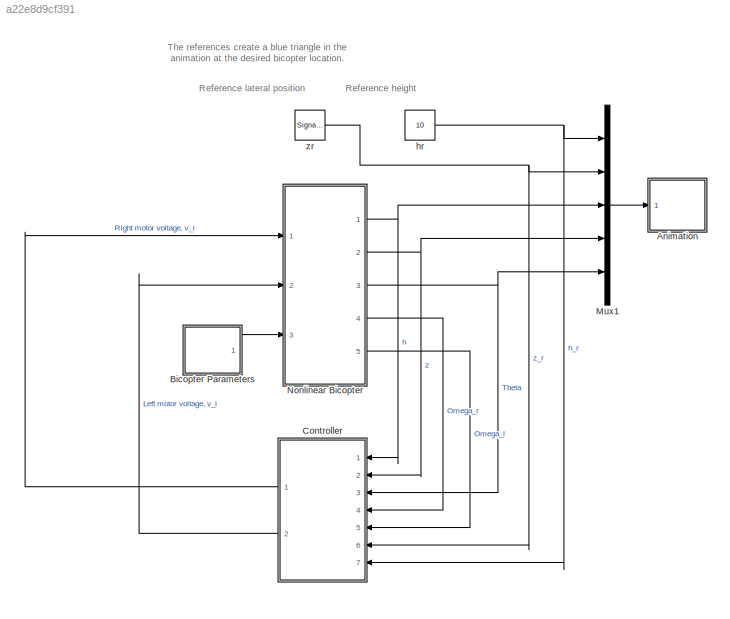
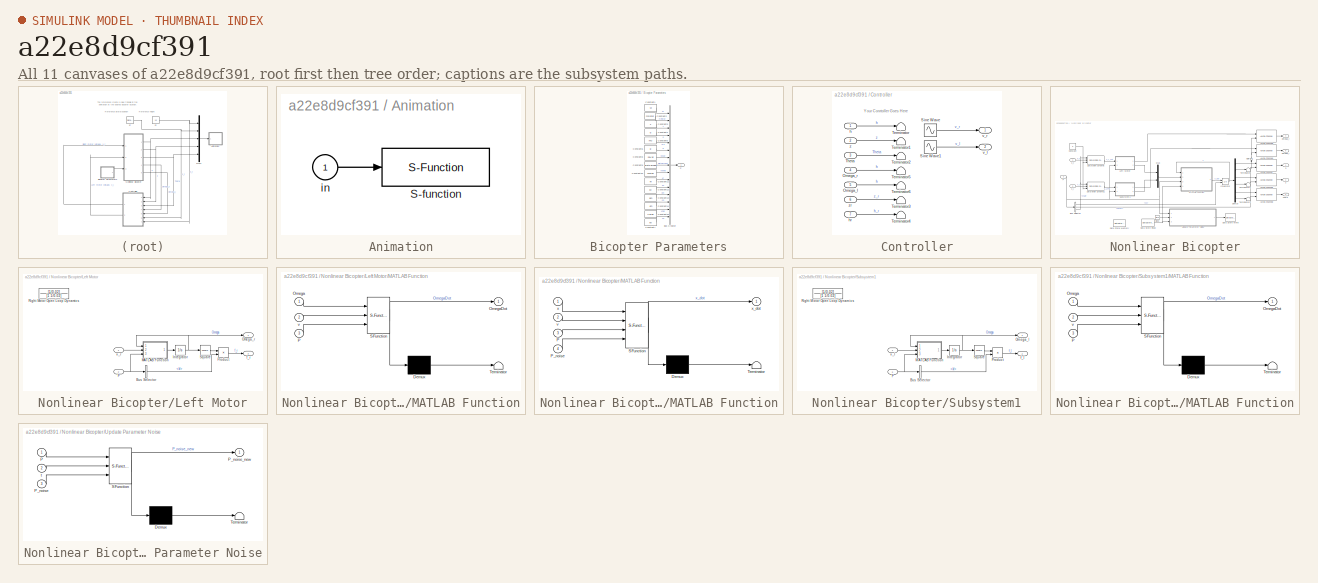
[diagram: thumbnail index - all 11 canvases of the model, root first then tree order]
MODEL slx_a22e8d9cf391
KIND model
CONFIG AbsTol = auto
CONFIG EnableMultiTasking = off
CONFIG FixedStep = 0.001
CONFIG MaxStep = auto
CONFIG MinStep = auto
CONFIG PreLoadFcn = clear P Pstruct\nPStruct=Simulink.Bus\nP(1,1)=Simulink.BusElement\nP(2,1)=Simulink.BusElement\nP(3,1)=Simulink.BusElement\nP(4,1)=Simulink.BusElement\nP(5,1)=Simulink.BusElement\nP(6,1)=Simulink.BusElement\nP(7,1)=Simulink.BusElement\nP(8,1)=Simulink.BusElement\nP(9,1)=Simulink.BusElement\nP(10,1)=Simulink.BusElement\nP(11,1)=Simulink.BusElement\nP(12,1)=Simulink.BusElement\nP(13,1)=Simulink.BusElement\nP(14,1)=...<+372ch>
CONFIG RelTol = 1e-3
CONFIG SampleTimeConstraint = Unconstrained
CONFIG Solver = ode1
CONFIG SolverName = ode1
CONFIG StartTime = 0.0
CONFIG StopTime = 100
BLOCK [SubSystem] Animation
  Ports = [1]
  RequestExecContextInheritance = off
BLOCK [S-Function] Animation/S-function
  DeleteFcn = pendan([],[],[],'DeleteBlock');
  EnableBusSupport = off
  FunctionName = planarBicopterAnimation
  Ports = [1]
  SFcnIsStateOwnerBlock = off
  SFunctionDeploymentMode = off
BLOCK [Inport] Animation/in
  IconDisplay = Port number
BLOCK [SubSystem] Bicopter Parameters
  Ports = [0, 1]
  RequestExecContextInheritance = off
BLOCK [BusCreator] Bicopter Parameters/Bus Creator
  DisplayOption = bar
  InheritFromInputs = on
  Inputs = 15
  OutDataTypeStr = Bus: PStruct
  Ports = [15, 1]
BLOCK [Constant] Bicopter Parameters/Constant1
  Value = M
BLOCK [Constant] Bicopter Parameters/Constant10
  Value = vWind
  VectorParams1D = off
BLOCK [Constant] Bicopter Parameters/Constant11
  Value = kf
  VectorParams1D = off
BLOCK [Constant] Bicopter Parameters/Constant12
  Value = kv
  VectorParams1D = off
BLOCK [Constant] Bicopter Parameters/Constant13
  Value = bm
  VectorParams1D = off
BLOCK [Constant] Bicopter Parameters/Constant14
  Value = Jm
  VectorParams1D = off
BLOCK [Constant] Bicopter Parameters/Constant15
  Value = Value
  VectorParams1D = off
BLOCK [Constant] Bicopter Parameters/Constant2
  Value = mRotor
BLOCK [Constant] Bicopter Parameters/Constant3
  Value = J
BLOCK [Constant] Bicopter Parameters/Constant4
  Value = d
BLOCK [Constant] Bicopter Parameters/Constant5
  Value = mu
BLOCK [Constant] Bicopter Parameters/Constant6
  Value = g
BLOCK [Constant] Bicopter Parameters/Constant7
  Value = x0
  VectorParams1D = off
BLOCK [Constant] Bicopter Parameters/Constant8
  Value = noVar
  VectorParams1D = off
BLOCK [Constant] Bicopter Parameters/Constant9
  Value = distPercent
  VectorParams1D = off
BLOCK [Outport] Bicopter Parameters/P
  IconDisplay = Port number
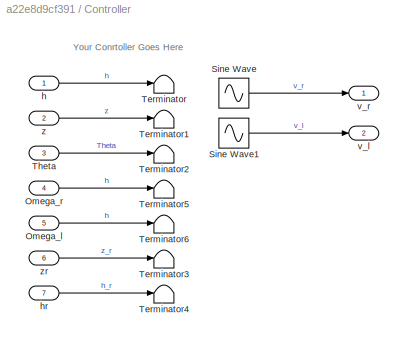
BLOCK [SubSystem] Controller
  Ports = [7, 2]
  RequestExecContextInheritance = off
BLOCK [Inport] Controller/Omega_l
  IconDisplay = Port number
  Port = 5
BLOCK [Inport] Controller/Omega_r
  IconDisplay = Port number
  Port = 4
BLOCK [Sin] Controller/Sine Wave
  Amplitude = 0.002
  Bias = 8.3
  Ports = [0, 1]
  SampleTime = 0
BLOCK [Sin] Controller/Sine Wave1
  Amplitude = 0.002
  Bias = 8.3
  Phase = 0.1
  Ports = [0, 1]
  SampleTime = 0
BLOCK [Terminator] Controller/Terminator
BLOCK [Terminator] Controller/Terminator1
BLOCK [Terminator] Controller/Terminator2
BLOCK [Terminator] Controller/Terminator3
BLOCK [Terminator] Controller/Terminator4
BLOCK [Terminator] Controller/Terminator5
BLOCK [Terminator] Controller/Terminator6
BLOCK [Inport] Controller/Theta
  IconDisplay = Port number
  Port = 3
BLOCK [Inport] Controller/h
  IconDisplay = Port number
BLOCK [Inport] Controller/hr
  IconDisplay = Port number
  Port = 7
BLOCK [Outport] Controller/v_l
  IconDisplay = Port number
  Port = 2
BLOCK [Outport] Controller/v_r
  IconDisplay = Port number
BLOCK [Inport] Controller/z
  IconDisplay = Port number
  Port = 2
BLOCK [Inport] Controller/zr
  IconDisplay = Port number
  Port = 6
BLOCK [Mux] Mux1
  DisplayOption = bar
  Inputs = 5
  Ports = [5, 1]
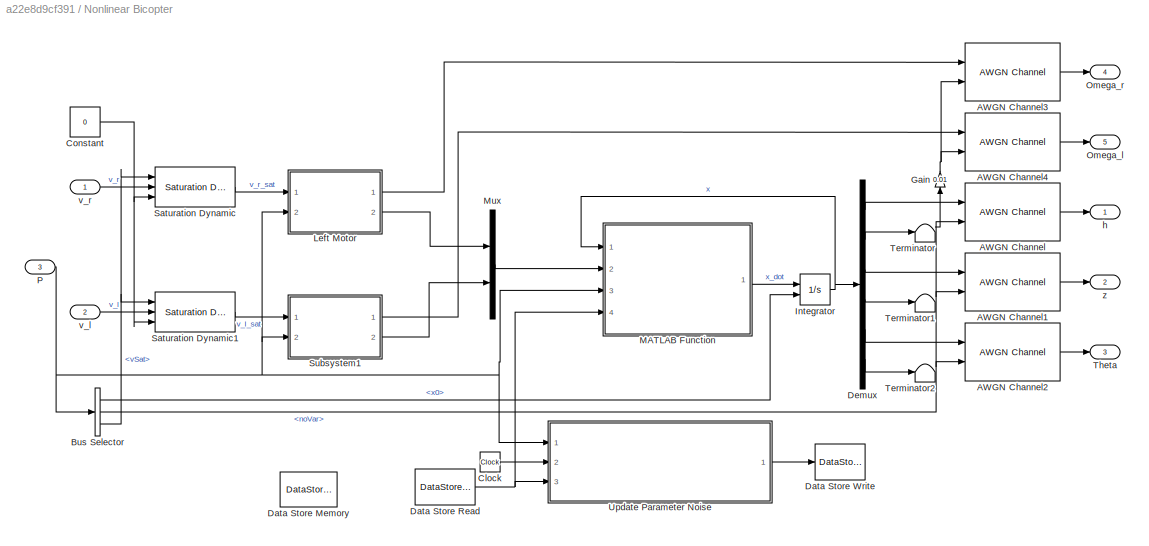
BLOCK [SubSystem] Nonlinear Bicopter
  Ports = [3, 5]
  RequestExecContextInheritance = off
BLOCK [Reference] Nonlinear Bicopter/AWGN Channel  REF=commchan3/AWGN
Channel
  Ports = [2, 1]
  SourceBlock = commchan3/AWGN\nChannel
  SourceProductBaseCode = CM
  SourceProductName = Communications Toolbox
  SourceType = AWGN Channel
  UserDataPersistent = on
BLOCK [Reference] Nonlinear Bicopter/AWGN Channel1  REF=commchan3/AWGN
Channel
  Ports = [2, 1]
  SourceBlock = commchan3/AWGN\nChannel
  SourceProductBaseCode = CM
  SourceProductName = Communications Toolbox
  SourceType = AWGN Channel
  UserDataPersistent = on
BLOCK [Reference] Nonlinear Bicopter/AWGN Channel2  REF=commchan3/AWGN
Channel
  Ports = [2, 1]
  SourceBlock = commchan3/AWGN\nChannel
  SourceProductBaseCode = CM
  SourceProductName = Communications Toolbox
  SourceType = AWGN Channel
  UserDataPersistent = on
BLOCK [Reference] Nonlinear Bicopter/AWGN Channel3  REF=commchan3/AWGN
Channel
  Ports = [2, 1]
  SourceBlock = commchan3/AWGN\nChannel
  SourceProductBaseCode = CM
  SourceProductName = Communications Toolbox
  SourceType = AWGN Channel
  UserDataPersistent = on
BLOCK [Reference] Nonlinear Bicopter/AWGN Channel4  REF=commchan3/AWGN
Channel
  Ports = [2, 1]
  SourceBlock = commchan3/AWGN\nChannel
  SourceProductBaseCode = CM
  SourceProductName = Communications Toolbox
  SourceType = AWGN Channel
  UserDataPersistent = on
BLOCK [BusSelector] Nonlinear Bicopter/Bus Selector
  OutputAsBus = off
  OutputSignals = x0,noVar,vSat
  Ports = [1, 3]
BLOCK [Clock] Nonlinear Bicopter/Clock
BLOCK [Constant] Nonlinear Bicopter/Constant
  Value = 0
BLOCK [DataStoreMemory] Nonlinear Bicopter/Data Store Memory
  DataStoreName = P_noise
  InitialValue = [0;0;0;0;0;0;0;0]
  OutDataTypeStr = double
  ReadBeforeWriteMsg = warning
  ShowAdditionalParam = off
  SignalType = real
  WriteAfterReadMsg = warning
  WriteAfterWriteMsg = warning
BLOCK [DataStoreRead] Nonlinear Bicopter/Data Store Read
  DataStoreName = P_noise
  Ports = [0, 1]
BLOCK [DataStoreWrite] Nonlinear Bicopter/Data Store Write
  DataStoreName = P_noise
  Ports = [1]
BLOCK [Demux] Nonlinear Bicopter/Demux
  DisplayOption = bar
  Outputs = 6
  Ports = [1, 6]
BLOCK [Gain] Nonlinear Bicopter/Gain
  Gain = 0.01
  OutDataTypeStr = Inherit: Inherit via internal rule
  ParamDataTypeStr = Inherit: Inherit via internal rule
  SaturateOnIntegerOverflow = off
BLOCK [Integrator] Nonlinear Bicopter/Integrator
  InitialConditionSource = external
  Ports = [2, 1]
BLOCK [SubSystem] Nonlinear Bicopter/Left Motor
  Ports = [2, 2]
  RequestExecContextInheritance = off
BLOCK [BusSelector] Nonlinear Bicopter/Left Motor/Bus Selector
  OutputAsBus = off
  OutputSignals = kf
  Ports = [1, 1]
BLOCK [Integrator] Nonlinear Bicopter/Left Motor/Integrator
  Ports = [1, 1]
BLOCK [SubSystem] Nonlinear Bicopter/Left Motor/MATLAB Function
  ErrorFcn = Stateflow.Translate.translate
  PermitHierarchicalResolution = ExplicitOnly
  Ports = [3, 1]
  RequestExecContextInheritance = off
  SFBlockType = MATLAB Function
  TreatAsAtomicUnit = on
BLOCK [Demux] Nonlinear Bicopter/Left Motor/MATLAB Function/ Demux 
  Outputs = 1
  Ports = [1, 1]
BLOCK [S-Function] Nonlinear Bicopter/Left Motor/MATLAB Function/ SFunction 
  EnableBusSupport = on
  FunctionName = sf_sfun
  PortCounts = [3 2]
  Ports = [3, 2]
  SFcnIsStateOwnerBlock = off
  SFunctionDeploymentMode = off
  Tag = Stateflow S-Function 2
BLOCK [Terminator] Nonlinear Bicopter/Left Motor/MATLAB Function/ Terminator 
BLOCK [Inport] Nonlinear Bicopter/Left Motor/MATLAB Function/Omega
  IconDisplay = Port number
BLOCK [Outport] Nonlinear Bicopter/Left Motor/MATLAB Function/OmegaDot
  IconDisplay = Port number
BLOCK [Inport] Nonlinear Bicopter/Left Motor/MATLAB Function/P
  IconDisplay = Port number
  Port = 3
BLOCK [Inport] Nonlinear Bicopter/Left Motor/MATLAB Function/v
  IconDisplay = Port number
  Port = 2
BLOCK [Outport] Nonlinear Bicopter/Left Motor/Omega_r
  IconDisplay = Port number
BLOCK [Inport] Nonlinear Bicopter/Left Motor/P
  IconDisplay = Port number
  Port = 2
BLOCK [Product] Nonlinear Bicopter/Left Motor/Product
  InputSameDT = off
  OutDataTypeStr = Inherit: Inherit via internal rule
  Ports = [2, 1]
  RndMeth = Floor
  SaturateOnIntegerOverflow = off
BLOCK [TransferFcn] Nonlinear Bicopter/Left Motor/Right Motor Open Loop Dynamics
  Commented = on
  Denominator = [1 1/0.02]
  Numerator = [1/0.02]
BLOCK [Math] Nonlinear Bicopter/Left Motor/Square
  Operator = square
  Ports = [1, 1]
  SignedPower = off
BLOCK [Outport] Nonlinear Bicopter/Left Motor/f_r
  IconDisplay = Port number
  Port = 2
BLOCK [Inport] Nonlinear Bicopter/Left Motor/v_r
  IconDisplay = Port number
BLOCK [SubSystem] Nonlinear Bicopter/MATLAB Function
  ErrorFcn = Stateflow.Translate.translate
  PermitHierarchicalResolution = ExplicitOnly
  Ports = [4, 1]
  RequestExecContextInheritance = off
  SFBlockType = MATLAB Function
  TreatAsAtomicUnit = on
BLOCK [Demux] Nonlinear Bicopter/MATLAB Function/ Demux 
  Outputs = 1
  Ports = [1, 1]
BLOCK [S-Function] Nonlinear Bicopter/MATLAB Function/ SFunction 
  EnableBusSupport = on
  FunctionName = sf_sfun
  PortCounts = [4 2]
  Ports = [4, 2]
  SFcnIsStateOwnerBlock = off
  SFunctionDeploymentMode = off
  Tag = Stateflow S-Function 3
BLOCK [Terminator] Nonlinear Bicopter/MATLAB Function/ Terminator 
BLOCK [Inport] Nonlinear Bicopter/MATLAB Function/P
  IconDisplay = Port number
  Port = 3
BLOCK [Inport] Nonlinear Bicopter/MATLAB Function/P_noise
  IconDisplay = Port number
  Port = 4
BLOCK [Inport] Nonlinear Bicopter/MATLAB Function/v
  IconDisplay = Port number
  Port = 2
BLOCK [Inport] Nonlinear Bicopter/MATLAB Function/x
  IconDisplay = Port number
BLOCK [Outport] Nonlinear Bicopter/MATLAB Function/x_dot
  IconDisplay = Port number
BLOCK [Mux] Nonlinear Bicopter/Mux
  DisplayOption = bar
  Inputs = 2
  Ports = [2, 1]
BLOCK [Outport] Nonlinear Bicopter/Omega_l
  IconDisplay = Port number
  Port = 5
BLOCK [Outport] Nonlinear Bicopter/Omega_r
  IconDisplay = Port number
  Port = 4
BLOCK [Inport] Nonlinear Bicopter/P
  IconDisplay = Port number
  Port = 3
BLOCK [Reference] Nonlinear Bicopter/Saturation Dynamic  REF=simulink/Discontinuities/Saturation
Dynamic
  Ports = [3, 1]
  SourceBlock = simulink/Discontinuities/Saturation\nDynamic
  SourceProductBaseCode = SL
  SourceProductName = Simulink
  SourceType = Saturation Dynamic
BLOCK [Reference] Nonlinear Bicopter/Saturation Dynamic1  REF=simulink/Discontinuities/Saturation
Dynamic
  Ports = [3, 1]
  SourceBlock = simulink/Discontinuities/Saturation\nDynamic
  SourceProductBaseCode = SL
  SourceProductName = Simulink
  SourceType = Saturation Dynamic
BLOCK [SubSystem] Nonlinear Bicopter/Subsystem1
  Ports = [2, 2]
  RequestExecContextInheritance = off
BLOCK [BusSelector] Nonlinear Bicopter/Subsystem1/Bus Selector
  OutputAsBus = off
  OutputSignals = kf
  Ports = [1, 1]
BLOCK [Integrator] Nonlinear Bicopter/Subsystem1/Integrator
  Ports = [1, 1]
BLOCK [SubSystem] Nonlinear Bicopter/Subsystem1/MATLAB Function
  ErrorFcn = Stateflow.Translate.translate
  PermitHierarchicalResolution = ExplicitOnly
  Ports = [3, 1]
  RequestExecContextInheritance = off
  SFBlockType = MATLAB Function
  TreatAsAtomicUnit = on
BLOCK [Demux] Nonlinear Bicopter/Subsystem1/MATLAB Function/ Demux 
  Outputs = 1
  Ports = [1, 1]
BLOCK [S-Function] Nonlinear Bicopter/Subsystem1/MATLAB Function/ SFunction 
  EnableBusSupport = on
  FunctionName = sf_sfun
  PortCounts = [3 2]
  Ports = [3, 2]
  SFcnIsStateOwnerBlock = off
  SFunctionDeploymentMode = off
  Tag = Stateflow S-Function 1
BLOCK [Terminator] Nonlinear Bicopter/Subsystem1/MATLAB Function/ Terminator 
BLOCK [Inport] Nonlinear Bicopter/Subsystem1/MATLAB Function/Omega
  IconDisplay = Port number
BLOCK [Outport] Nonlinear Bicopter/Subsystem1/MATLAB Function/OmegaDot
  IconDisplay = Port number
BLOCK [Inport] Nonlinear Bicopter/Subsystem1/MATLAB Function/P
  IconDisplay = Port number
  Port = 3
BLOCK [Inport] Nonlinear Bicopter/Subsystem1/MATLAB Function/v
  IconDisplay = Port number
  Port = 2
BLOCK [Outport] Nonlinear Bicopter/Subsystem1/Omega_l
  IconDisplay = Port number
BLOCK [Inport] Nonlinear Bicopter/Subsystem1/P
  IconDisplay = Port number
  Port = 2
BLOCK [Product] Nonlinear Bicopter/Subsystem1/Product
  InputSameDT = off
  OutDataTypeStr = Inherit: Inherit via internal rule
  Ports = [2, 1]
  RndMeth = Floor
  SaturateOnIntegerOverflow = off
BLOCK [TransferFcn] Nonlinear Bicopter/Subsystem1/Right Motor Open Loop Dynamics
  Commented = on
  Denominator = [1 1/0.02]
  Numerator = [1/0.02]
BLOCK [Math] Nonlinear Bicopter/Subsystem1/Square
  Operator = square
  Ports = [1, 1]
  SignedPower = off
BLOCK [Outport] Nonlinear Bicopter/Subsystem1/f_l
  IconDisplay = Port number
  Port = 2
BLOCK [Inport] Nonlinear Bicopter/Subsystem1/v_l
  IconDisplay = Port number
BLOCK [Terminator] Nonlinear Bicopter/Terminator
BLOCK [Terminator] Nonlinear Bicopter/Terminator1
BLOCK [Terminator] Nonlinear Bicopter/Terminator2
BLOCK [Outport] Nonlinear Bicopter/Theta
  IconDisplay = Port number
  Port = 3
BLOCK [SubSystem] Nonlinear Bicopter/Update Parameter Noise
  ErrorFcn = Stateflow.Translate.translate
  PermitHierarchicalResolution = ExplicitOnly
  Ports = [3, 1]
  RequestExecContextInheritance = off
  SFBlockType = MATLAB Function
  TreatAsAtomicUnit = on
BLOCK [Demux] Nonlinear Bicopter/Update Parameter Noise/ Demux 
  Outputs = 1
  Ports = [1, 1]
BLOCK [S-Function] Nonlinear Bicopter/Update Parameter Noise/ SFunction 
  EnableBusSupport = on
  FunctionName = sf_sfun
  PortCounts = [3 2]
  Ports = [3, 2]
  SFcnIsStateOwnerBlock = off
  SFunctionDeploymentMode = off
  Tag = Stateflow S-Function 4
BLOCK [Terminator] Nonlinear Bicopter/Update Parameter Noise/ Terminator 
BLOCK [Inport] Nonlinear Bicopter/Update Parameter Noise/P
  IconDisplay = Port number
BLOCK [Inport] Nonlinear Bicopter/Update Parameter Noise/P_noise
  IconDisplay = Port number
  Port = 3
BLOCK [Outport] Nonlinear Bicopter/Update Parameter Noise/P_noise_new
  IconDisplay = Port number
BLOCK [Inport] Nonlinear Bicopter/Update Parameter Noise/t
  IconDisplay = Port number
  Port = 2
BLOCK [Outport] Nonlinear Bicopter/h
  IconDisplay = Port number
BLOCK [Inport] Nonlinear Bicopter/v_l
  IconDisplay = Port number
  Port = 2
BLOCK [Inport] Nonlinear Bicopter/v_r
  IconDisplay = Port number
BLOCK [Outport] Nonlinear Bicopter/z
  IconDisplay = Port number
  Port = 2
BLOCK [Constant] hr
  Value = 10
BLOCK [SignalGenerator] zr
  Amplitude = 1.5
  Frequency = 0.05
  Ports = [0, 1]
  WaveForm = square
ANNOTATION (root): The references create a blue triangle in the animation at the desired bicopter location.
ANNOTATION (root): Reference height
ANNOTATION (root): Reference lateral position
ANNOTATION Controller: Your Conrtoller Goes Here
LINE Animation/in:1 -> Animation/S-function:1
LINE Bicopter Parameters/Bus Creator:1 -> Bicopter Parameters/P:1
LINE Bicopter Parameters/Constant10:1 -> Bicopter Parameters/Bus Creator:9
LINE Bicopter Parameters/Constant11:1 -> Bicopter Parameters/Bus Creator:10
LINE Bicopter Parameters/Constant12:1 -> Bicopter Parameters/Bus Creator:11
LINE Bicopter Parameters/Constant13:1 -> Bicopter Parameters/Bus Creator:12
LINE Bicopter Parameters/Constant14:1 -> Bicopter Parameters/Bus Creator:13
LINE Bicopter Parameters/Constant15:1 -> Bicopter Parameters/Bus Creator:14
LINE Bicopter Parameters/Constant1:1 -> Bicopter Parameters/Bus Creator:1
LINE Bicopter Parameters/Constant2:1 -> Bicopter Parameters/Bus Creator:2
LINE Bicopter Parameters/Constant3:1 -> Bicopter Parameters/Bus Creator:3
LINE Bicopter Parameters/Constant4:1 -> Bicopter Parameters/Bus Creator:4
LINE Bicopter Parameters/Constant5:1 -> Bicopter Parameters/Bus Creator:5
LINE Bicopter Parameters/Constant6:1 -> Bicopter Parameters/Bus Creator:6
LINE Bicopter Parameters/Constant7:1 -> Bicopter Parameters/Bus Creator:15
LINE Bicopter Parameters/Constant8:1 -> Bicopter Parameters/Bus Creator:7
LINE Bicopter Parameters/Constant9:1 -> Bicopter Parameters/Bus Creator:8
LINE Bicopter Parameters:1 -> Nonlinear Bicopter:3
LINE Controller/Omega_l:1 -> Controller/Terminator6:1
LINE Controller/Omega_r:1 -> Controller/Terminator5:1
LINE Controller/Sine Wave1:1 -> Controller/v_l:1
LINE Controller/Sine Wave:1 -> Controller/v_r:1
LINE Controller/Theta:1 -> Controller/Terminator2:1
LINE Controller/h:1 -> Controller/Terminator:1
LINE Controller/hr:1 -> Controller/Terminator4:1
LINE Controller/z:1 -> Controller/Terminator1:1
LINE Controller/zr:1 -> Controller/Terminator3:1
LINE Controller:1 -> Nonlinear Bicopter:1
LINE Controller:2 -> Nonlinear Bicopter:2
LINE Mux1:1 -> Animation:1
LINE Nonlinear Bicopter/AWGN Channel1:1 -> Nonlinear Bicopter/z:1
LINE Nonlinear Bicopter/AWGN Channel2:1 -> Nonlinear Bicopter/Theta:1
LINE Nonlinear Bicopter/AWGN Channel3:1 -> Nonlinear Bicopter/Omega_r:1
LINE Nonlinear Bicopter/AWGN Channel4:1 -> Nonlinear Bicopter/Omega_l:1
LINE Nonlinear Bicopter/AWGN Channel:1 -> Nonlinear Bicopter/h:1
LINE Nonlinear Bicopter/Bus Selector:1 -> Nonlinear Bicopter/Integrator:2
NET Nonlinear Bicopter/Bus Selector:2 -> Nonlinear Bicopter/AWGN Channel1:2, Nonlinear Bicopter/AWGN Channel2:2, Nonlinear Bicopter/AWGN Channel:2, Nonlinear Bicopter/Gain:1
NET Nonlinear Bicopter/Bus Selector:3 -> Nonlinear Bicopter/Saturation Dynamic1:1, Nonlinear Bicopter/Saturation Dynamic:1
LINE Nonlinear Bicopter/Clock:1 -> Nonlinear Bicopter/Update Parameter Noise:2
NET Nonlinear Bicopter/Constant:1 -> Nonlinear Bicopter/Saturation Dynamic1:3, Nonlinear Bicopter/Saturation Dynamic:3
NET Nonlinear Bicopter/Data Store Read:1 -> Nonlinear Bicopter/MATLAB Function:4, Nonlinear Bicopter/Update Parameter Noise:3
LINE Nonlinear Bicopter/Demux:1 -> Nonlinear Bicopter/AWGN Channel:1
LINE Nonlinear Bicopter/Demux:2 -> Nonlinear Bicopter/Terminator:1
LINE Nonlinear Bicopter/Demux:3 -> Nonlinear Bicopter/AWGN Channel1:1
LINE Nonlinear Bicopter/Demux:4 -> Nonlinear Bicopter/Terminator1:1
LINE Nonlinear Bicopter/Demux:5 -> Nonlinear Bicopter/AWGN Channel2:1
LINE Nonlinear Bicopter/Demux:6 -> Nonlinear Bicopter/Terminator2:1
NET Nonlinear Bicopter/Gain:1 -> Nonlinear Bicopter/AWGN Channel3:2, Nonlinear Bicopter/AWGN Channel4:2
NET Nonlinear Bicopter/Integrator:1 -> Nonlinear Bicopter/Demux:1, Nonlinear Bicopter/MATLAB Function:1
LINE Nonlinear Bicopter/Left Motor/Bus Selector:1 -> Nonlinear Bicopter/Left Motor/Product:2
NET Nonlinear Bicopter/Left Motor/Integrator:1 -> Nonlinear Bicopter/Left Motor/MATLAB Function:1, Nonlinear Bicopter/Left Motor/Omega_r:1, Nonlinear Bicopter/Left Motor/Square:1
LINE Nonlinear Bicopter/Left Motor/MATLAB Function:1 -> Nonlinear Bicopter/Left Motor/Integrator:1
NET Nonlinear Bicopter/Left Motor/P:1 -> Nonlinear Bicopter/Left Motor/Bus Selector:1, Nonlinear Bicopter/Left Motor/MATLAB Function:3
LINE Nonlinear Bicopter/Left Motor/Product:1 -> Nonlinear Bicopter/Left Motor/f_r:1
LINE Nonlinear Bicopter/Left Motor/Square:1 -> Nonlinear Bicopter/Left Motor/Product:1
LINE Nonlinear Bicopter/Left Motor/v_r:1 -> Nonlinear Bicopter/Left Motor/MATLAB Function:2
LINE Nonlinear Bicopter/Left Motor:1 -> Nonlinear Bicopter/AWGN Channel3:1
LINE Nonlinear Bicopter/Left Motor:2 -> Nonlinear Bicopter/Mux:1
LINE Nonlinear Bicopter/MATLAB Function:1 -> Nonlinear Bicopter/Integrator:1
LINE Nonlinear Bicopter/Mux:1 -> Nonlinear Bicopter/MATLAB Function:2
NET Nonlinear Bicopter/P:1 -> Nonlinear Bicopter/Bus Selector:1, Nonlinear Bicopter/Left Motor:2, Nonlinear Bicopter/MATLAB Function:3, Nonlinear Bicopter/Subsystem1:2, Nonlinear Bicopter/Update Parameter Noise:1
LINE Nonlinear Bicopter/Saturation Dynamic1:1 -> Nonlinear Bicopter/Subsystem1:1
LINE Nonlinear Bicopter/Saturation Dynamic:1 -> Nonlinear Bicopter/Left Motor:1
LINE Nonlinear Bicopter/Subsystem1/Bus Selector:1 -> Nonlinear Bicopter/Subsystem1/Product:2
NET Nonlinear Bicopter/Subsystem1/Integrator:1 -> Nonlinear Bicopter/Subsystem1/MATLAB Function:1, Nonlinear Bicopter/Subsystem1/Omega_l:1, Nonlinear Bicopter/Subsystem1/Square:1
LINE Nonlinear Bicopter/Subsystem1/MATLAB Function:1 -> Nonlinear Bicopter/Subsystem1/Integrator:1
NET Nonlinear Bicopter/Subsystem1/P:1 -> Nonlinear Bicopter/Subsystem1/Bus Selector:1, Nonlinear Bicopter/Subsystem1/MATLAB Function:3
LINE Nonlinear Bicopter/Subsystem1/Product:1 -> Nonlinear Bicopter/Subsystem1/f_l:1
LINE Nonlinear Bicopter/Subsystem1/Square:1 -> Nonlinear Bicopter/Subsystem1/Product:1
LINE Nonlinear Bicopter/Subsystem1/v_l:1 -> Nonlinear Bicopter/Subsystem1/MATLAB Function:2
LINE Nonlinear Bicopter/Subsystem1:1 -> Nonlinear Bicopter/AWGN Channel4:1
LINE Nonlinear Bicopter/Subsystem1:2 -> Nonlinear Bicopter/Mux:2
LINE Nonlinear Bicopter/Update Parameter Noise:1 -> Nonlinear Bicopter/Data Store Write:1
LINE Nonlinear Bicopter/v_l:1 -> Nonlinear Bicopter/Saturation Dynamic1:2
LINE Nonlinear Bicopter/v_r:1 -> Nonlinear Bicopter/Saturation Dynamic:2
NET Nonlinear Bicopter:1 -> Controller:1, Mux1:3
NET Nonlinear Bicopter:2 -> Controller:2, Mux1:4
NET Nonlinear Bicopter:3 -> Controller:3, Mux1:5
LINE Nonlinear Bicopter:4 -> Controller:4
LINE Nonlinear Bicopter:5 -> Controller:5
NET hr:1 -> Controller:7, Mux1:1
NET zr:1 -> Controller:6, Mux1:2
note: NET lines group one-source signal fan-out (src -> all destinations, sorted); 1:1 wires keep LINE
CHART Nonlinear Bicopter/Subsystem1/MATLAB Function states=1 transitions=1
  STATE_LABEL 'eML_blk_kernel()'
  STATE_LABEL 'SCRIPT:\nfunction OmegaDot = fcn(Omega,v,P)\nOmegaDot = -(P.bm/P.Jm)*Omega+(P.kv/P.Jm)*v;\nend'
CHART Nonlinear Bicopter/Left Motor/MATLAB Function states=1 transitions=1
  STATE_LABEL 'eML_blk_kernel()'
  STATE_LABEL 'SCRIPT:\nfunction OmegaDot = fcn(Omega,v,P)\nOmegaDot = -(P.bm/P.Jm)*Omega+(P.kv/P.Jm)*v;\nend'
CHART Nonlinear Bicopter/MATLAB Function states=1 transitions=1
  STATE_LABEL 'eML_blk_kernel()'
  STATE_LABEL 'SCRIPT:\n\nfunction x_dot = VTOLNonlinearDynamics(x,v,P, P_noise)\n\nM = P.M + P_noise(1);\nm = P.mRotor + P_noise(2);\nJ = P.J + P_noise(3);\nd = P.d + P_noise(4);\nmu = P.mu+ P_noise(5);\ng = P.g + P_noise(6);\nc_d = 1;\nv_wind = P.vWind + P_noise(7);\ntheta_wind = P_noise(8);\n\nF_drag_wind_vert = c_d*v_wind*sin(theta_wind);\nF_drag_wind_horiz = c_d*v_wind*cos(theta_wind);\n\nthrustToTorque = [1   1;\n          ...<+348ch>'
CHART Nonlinear Bicopter/Update Parameter Noise states=1 transitions=1
  STATE_LABEL 'eML_blk_kernel()'
  STATE_LABEL 'SCRIPT:\nfunction P_noise_new  = updateParameterNoise(P,t,P_noise)\nif t<=0.001\n    M = P.M ;\n    m = P.mRotor ;\n    J = P.J ;\n    d = P.d ;\n    mu = P.mu;\n    g = P.g ;\n    distPercent = P.distPercent;\n    MNoise = (distPercent*M/100)*rand - distPercent*M/200;\n    mNoise = (distPercent*m/100)*rand - distPercent*m/200;\n    JNoise = (distPercent*J/100)*rand - distPercent*J/200;\n    dNoise = (distPerc...<+593ch>'
